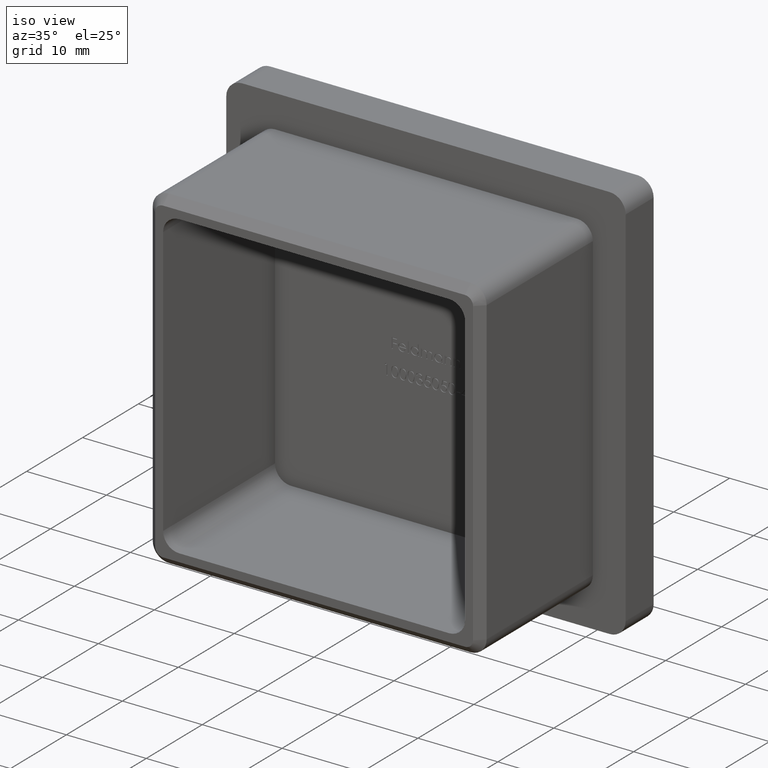
[diagram: clean part render]
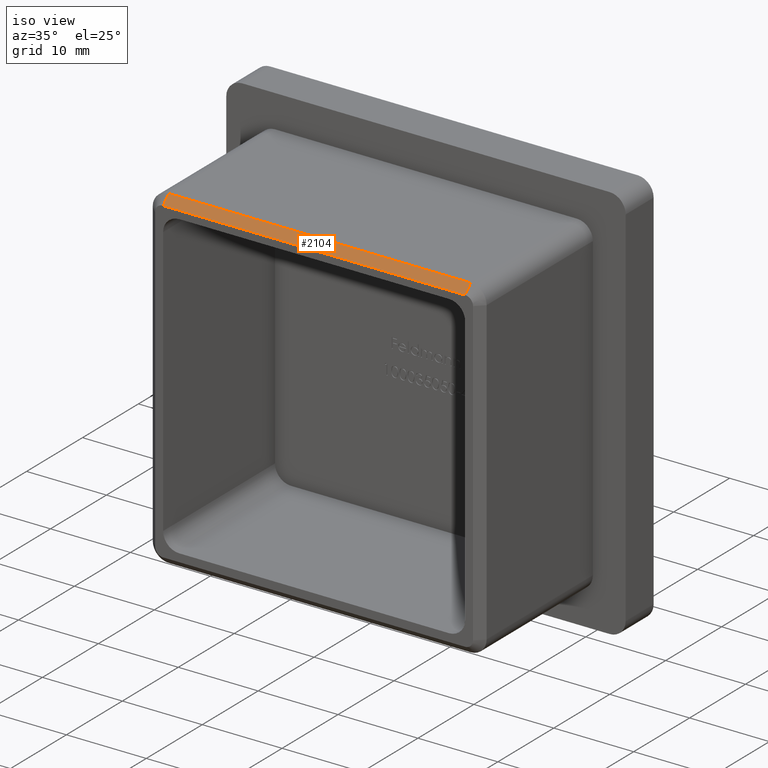
[diagram: same view with one face highlighted and labeled with its STEP entity id]
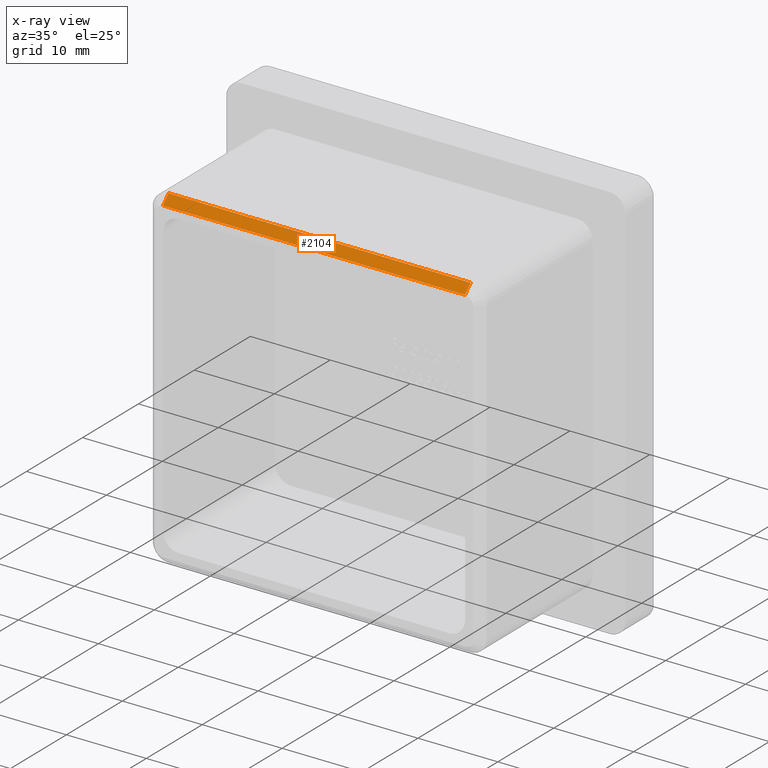
[diagram: x-ray of the same camera — body ghosted, the highlighted face saturated]
A machine part, iso view. The second image highlights one B-rep face of the part: STEP entity #2104.
The next image is the same camera in x-ray: the body ghosted, the highlighted face saturated — about 0% of this face is hidden behind the body in this view.
In plain terms, the highlighted planar face has unit normal (0, -0.7071, 0.7071).
Its self-contained STEP definition (entity closure, byte-faithful):
#170 = DIRECTION ( 'NONE',  ( 0.0000000000000000000, -0.7071067811865500200, -0.7071067811865451300 ) ) ;
#1068 = DIRECTION ( 'NONE',  ( 1.000000000000000000, 0.0000000000000000000, 0.0000000000000000000 ) ) ;
#2076 = VECTOR ( 'NONE', #170, 1000.000000000000100 ) ;
#2104 = ADVANCED_FACE ( 'NONE', ( #12858 ), #2326, .T. ) ;
#2326 = PLANE ( 'NONE',  #7295 ) ;
#2376 = ORIENTED_EDGE ( 'NONE', *, *, #11016, .F. ) ;
#2426 = VECTOR ( 'NONE', #1068, 1000.000000000000000 ) ;
#2958 = EDGE_CURVE ( 'NONE', #10881, #11351, #15202, .T. ) ;
#3798 = LINE ( 'NONE', #14490, #7830 ) ;
#3845 = EDGE_CURVE ( 'NONE', #10673, #11351, #3798, .T. ) ;
#4484 = LINE ( 'NONE', #13971, #10252 ) ;
#4776 = CARTESIAN_POINT ( 'NONE',  ( 18.90000000000000900, -18.99999999999998600, 20.90000000000000600 ) ) ;
#4861 = CARTESIAN_POINT ( 'NONE',  ( -18.90000000000000600, -18.99999999999998600, 20.90000000000000600 ) ) ;
#4881 = EDGE_CURVE ( 'NONE', #10881, #15936, #5716, .T. ) ;
#4893 = CARTESIAN_POINT ( 'NONE',  ( -18.90000000000000600, -18.99999999999998600, 20.90000000000000600 ) ) ;
#5716 = LINE ( 'NONE', #4776, #2426 ) ;
#5903 = DIRECTION ( 'NONE',  ( 1.000000000000000000, 0.0000000000000000000, 0.0000000000000000000 ) ) ;
#6358 = ORIENTED_EDGE ( 'NONE', *, *, #4881, .F. ) ;
#6615 = DIRECTION ( 'NONE',  ( 0.0000000000000000000, -0.7071067811865500200, -0.7071067811865451300 ) ) ;
#7295 = AXIS2_PLACEMENT_3D ( 'NONE', #15726, #12036, #5903 ) ;
#7830 = VECTOR ( 'NONE', #10775, 1000.000000000000000 ) ;
#10252 = VECTOR ( 'NONE', #6615, 1000.000000000000100 ) ;
#10308 = CARTESIAN_POINT ( 'NONE',  ( 18.90000000000000900, -20.00000000000000000, 19.89999999999999900 ) ) ;
#10673 = VERTEX_POINT ( 'NONE', #10308 ) ;
#10775 = DIRECTION ( 'NONE',  ( -1.000000000000000000, 0.0000000000000000000, 0.0000000000000000000 ) ) ;
#10881 = VERTEX_POINT ( 'NONE', #4861 ) ;
#11016 = EDGE_CURVE ( 'NONE', #15936, #10673, #4484, .T. ) ;
#11351 = VERTEX_POINT ( 'NONE', #13891 ) ;
#11939 = EDGE_LOOP ( 'NONE', ( #15848, #15303, #2376, #6358 ) ) ;
#12036 = DIRECTION ( 'NONE',  ( 0.0000000000000000000, -0.7071067811865451300, 0.7071067811865500200 ) ) ;
#12079 = CARTESIAN_POINT ( 'NONE',  ( 18.90000000000000900, -18.99999999999998600, 20.90000000000000600 ) ) ;
#12858 = FACE_OUTER_BOUND ( 'NONE', #11939, .T. ) ;
#13891 = CARTESIAN_POINT ( 'NONE',  ( -18.90000000000000600, -20.00000000000000000, 19.89999999999999900 ) ) ;
#13971 = CARTESIAN_POINT ( 'NONE',  ( 18.90000000000000900, -18.99999999999998600, 20.90000000000000600 ) ) ;
#14490 = CARTESIAN_POINT ( 'NONE',  ( -18.90000000000000600, -20.00000000000000000, 19.89999999999999900 ) ) ;
#15202 = LINE ( 'NONE', #4893, #2076 ) ;
#15303 = ORIENTED_EDGE ( 'NONE', *, *, #3845, .F. ) ;
#15726 = CARTESIAN_POINT ( 'NONE',  ( 0.0000000000000000000, -20.00000000000000000, 19.89999999999999900 ) ) ;
#15848 = ORIENTED_EDGE ( 'NONE', *, *, #2958, .T. ) ;
#15936 = VERTEX_POINT ( 'NONE', #12079 ) ;